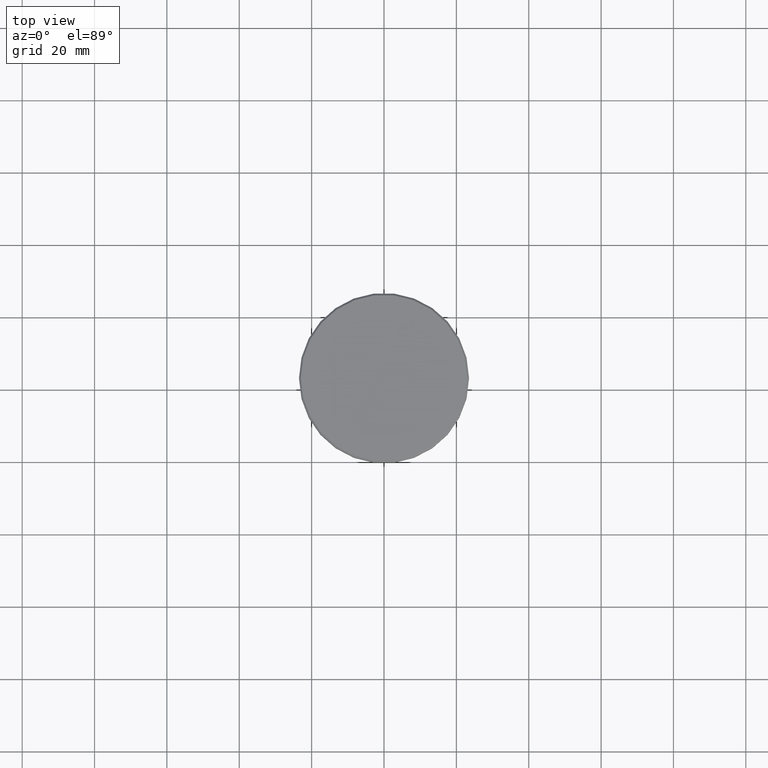
[diagram: clean part render]
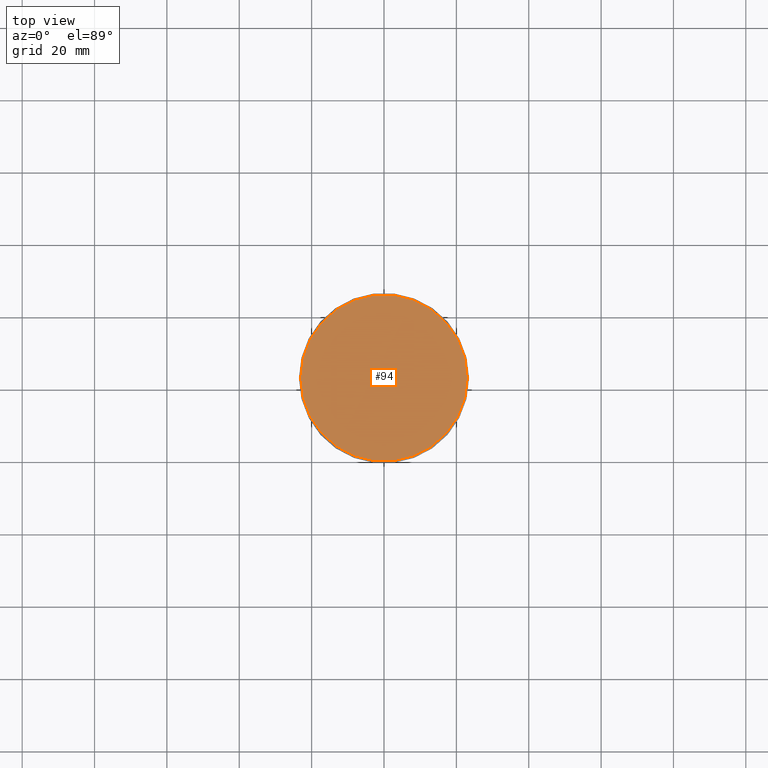
[diagram: same view with one face highlighted and labeled with its STEP entity id]
A machine part, top view. The second image highlights one B-rep face of the part: STEP entity #94.
In plain terms, the highlighted planar face has unit normal (0, -0, 1).
Its self-contained STEP definition (entity closure, byte-faithful):
#25 = DIRECTION ( 'NONE',  ( 1.000000000000000000, 0.000000000000000000, 0.000000000000000000 ) ) ;
#28 = VERTEX_POINT ( 'NONE', #893 ) ;
#66 = AXIS2_PLACEMENT_3D ( 'NONE', #817, #1061, #265 ) ;
#82 = PLANE ( 'NONE',  #119 ) ;
#91 = DIRECTION ( 'NONE',  ( 0.000000000000000000, -0.000000000000000000, 1.000000000000000000 ) ) ;
#94 = ADVANCED_FACE ( 'NONE', ( #1088 ), #82, .T. ) ;
#119 = AXIS2_PLACEMENT_3D ( 'NONE', #1181, #91, #457 ) ;
#206 = EDGE_LOOP ( 'NONE', ( #652, #1025 ) ) ;
#214 = AXIS2_PLACEMENT_3D ( 'NONE', #551, #372, #25 ) ;
#265 = DIRECTION ( 'NONE',  ( 1.000000000000000000, 0.000000000000000000, 0.000000000000000000 ) ) ;
#372 = DIRECTION ( 'NONE',  ( -0.000000000000000000, -0.000000000000000000, 1.000000000000000000 ) ) ;
#457 = DIRECTION ( 'NONE',  ( 1.000000000000000000, 0.000000000000000000, 0.000000000000000000 ) ) ;
#551 = CARTESIAN_POINT ( 'NONE',  ( 0.000000000000000000, 0.000000000000000000, 0.000000000000000000 ) ) ;
#575 = EDGE_CURVE ( 'NONE', #1012, #28, #1119, .T. ) ;
#652 = ORIENTED_EDGE ( 'NONE', *, *, #728, .T. ) ;
#728 = EDGE_CURVE ( 'NONE', #28, #1012, #1120, .T. ) ;
#817 = CARTESIAN_POINT ( 'NONE',  ( 0.000000000000000000, 0.000000000000000000, 0.000000000000000000 ) ) ;
#893 = CARTESIAN_POINT ( 'NONE',  ( -22.99999999999996803, 0.000000000000000000, 0.000000000000000000 ) ) ;
#1005 = CARTESIAN_POINT ( 'NONE',  ( 22.99999999999996803, 2.847303808017594561E-15, 0.000000000000000000 ) ) ;
#1012 = VERTEX_POINT ( 'NONE', #1005 ) ;
#1025 = ORIENTED_EDGE ( 'NONE', *, *, #575, .T. ) ;
#1061 = DIRECTION ( 'NONE',  ( -0.000000000000000000, -0.000000000000000000, 1.000000000000000000 ) ) ;
#1088 = FACE_OUTER_BOUND ( 'NONE', #206, .T. ) ;
#1119 = CIRCLE ( 'NONE', #66, 22.99999999999996803 ) ;
#1120 = CIRCLE ( 'NONE', #214, 22.99999999999996803 ) ;
#1181 = CARTESIAN_POINT ( 'NONE',  ( 0.000000000000000000, 0.000000000000000000, 0.000000000000000000 ) ) ;